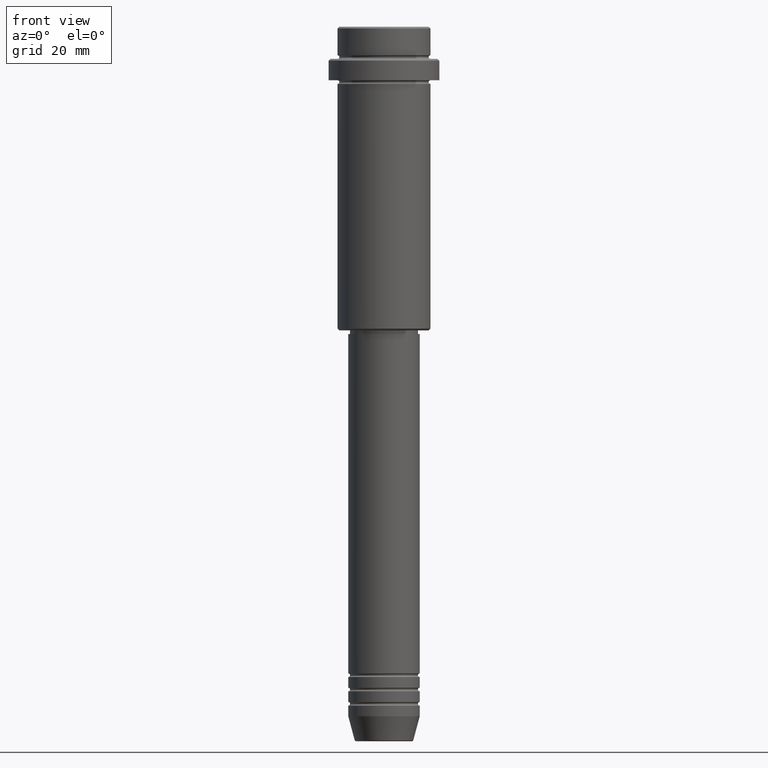
[diagram: clean part render]
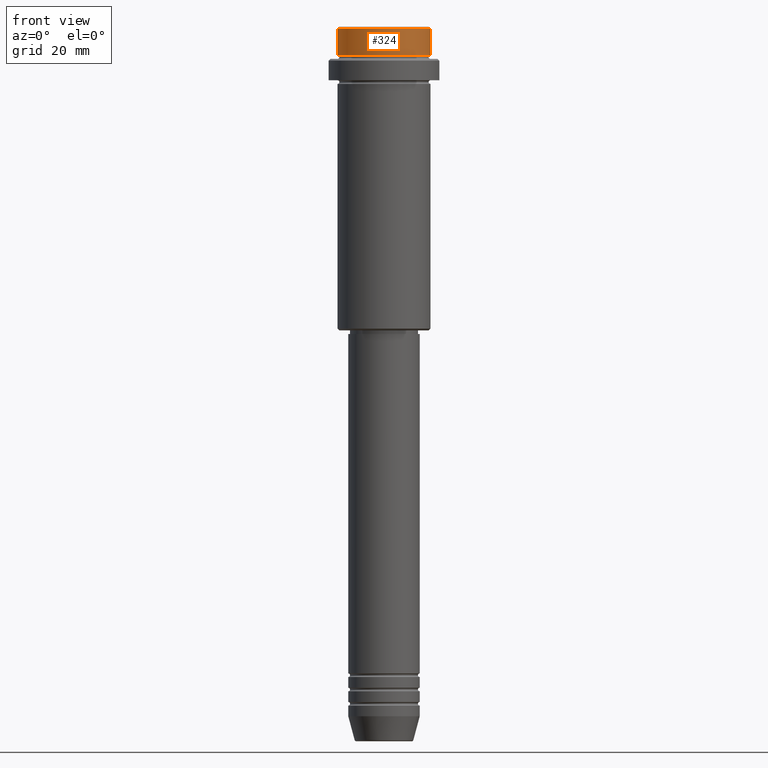
[diagram: same view with one face highlighted and labeled with its STEP entity id]
A machine part, front view. The second image highlights one B-rep face of the part: STEP entity #324.
In plain terms, the highlighted cylindrical surface (partial cylindrical patch) has radius 13 mm, axis along (-0, -0, 1).
Its self-contained STEP definition (entity closure, byte-faithful):
#11 = DIRECTION ( 'NONE',  ( -0.000000000000000000, -0.000000000000000000, 1.000000000000000000 ) ) ;
#87 = VERTEX_POINT ( 'NONE', #328 ) ;
#106 = DIRECTION ( 'NONE',  ( 1.000000000000000000, 0.000000000000000000, 0.000000000000000000 ) ) ;
#133 = DIRECTION ( 'NONE',  ( -0.000000000000000000, -0.000000000000000000, 1.000000000000000000 ) ) ;
#151 = DIRECTION ( 'NONE',  ( -0.000000000000000000, -0.000000000000000000, 1.000000000000000000 ) ) ;
#161 = ORIENTED_EDGE ( 'NONE', *, *, #1176, .T. ) ;
#223 = EDGE_CURVE ( 'NONE', #1054, #87, #1063, .T. ) ;
#251 = EDGE_CURVE ( 'NONE', #1111, #87, #1127, .T. ) ;
#255 = DIRECTION ( 'NONE',  ( 1.000000000000000000, 0.000000000000000000, 0.000000000000000000 ) ) ;
#292 = AXIS2_PLACEMENT_3D ( 'NONE', #901, #672, #255 ) ;
#303 = DIRECTION ( 'NONE',  ( 1.000000000000000000, 0.000000000000000000, 0.000000000000000000 ) ) ;
#324 = ADVANCED_FACE ( 'NONE', ( #384 ), #635, .T. ) ;
#328 = CARTESIAN_POINT ( 'NONE',  ( -12.99999999999999822, 1.592040838891558898E-15, -0.5000000000000037748 ) ) ;
#340 = CIRCLE ( 'NONE', #1180, 12.99999999999999822 ) ;
#384 = FACE_OUTER_BOUND ( 'NONE', #878, .T. ) ;
#410 = CARTESIAN_POINT ( 'NONE',  ( 12.99999999999999822, 0.000000000000000000, -0.5000000000000037748 ) ) ;
#423 = ORIENTED_EDGE ( 'NONE', *, *, #680, .T. ) ;
#472 = VECTOR ( 'NONE', #151, 1000.000000000000000 ) ;
#606 = AXIS2_PLACEMENT_3D ( 'NONE', #971, #1406, #303 ) ;
#635 = CYLINDRICAL_SURFACE ( 'NONE', #606, 12.99999999999999822 ) ;
#672 = DIRECTION ( 'NONE',  ( 0.000000000000000000, 0.000000000000000000, -1.000000000000000000 ) ) ;
#680 = EDGE_CURVE ( 'NONE', #1111, #1045, #340, .T. ) ;
#878 = EDGE_LOOP ( 'NONE', ( #1234, #423, #161, #949 ) ) ;
#888 = VECTOR ( 'NONE', #11, 1000.000000000000000 ) ;
#901 = CARTESIAN_POINT ( 'NONE',  ( 0.000000000000000000, 0.000000000000000000, -0.5000000000000037748 ) ) ;
#949 = ORIENTED_EDGE ( 'NONE', *, *, #223, .T. ) ;
#971 = CARTESIAN_POINT ( 'NONE',  ( 0.000000000000000000, 0.000000000000000000, 0.000000000000000000 ) ) ;
#980 = CARTESIAN_POINT ( 'NONE',  ( 12.99999999999999822, 0.000000000000000000, 0.000000000000000000 ) ) ;
#1030 = CARTESIAN_POINT ( 'NONE',  ( -12.99999999999999822, 1.592040838891558898E-15, 0.000000000000000000 ) ) ;
#1045 = VERTEX_POINT ( 'NONE', #1186 ) ;
#1054 = VERTEX_POINT ( 'NONE', #410 ) ;
#1063 = CIRCLE ( 'NONE', #292, 12.99999999999999822 ) ;
#1109 = LINE ( 'NONE', #980, #888 ) ;
#1111 = VERTEX_POINT ( 'NONE', #1257 ) ;
#1127 = LINE ( 'NONE', #1030, #472 ) ;
#1176 = EDGE_CURVE ( 'NONE', #1045, #1054, #1109, .T. ) ;
#1180 = AXIS2_PLACEMENT_3D ( 'NONE', #1218, #133, #106 ) ;
#1186 = CARTESIAN_POINT ( 'NONE',  ( 12.99999999999999822, 0.000000000000000000, -7.999999999999998224 ) ) ;
#1218 = CARTESIAN_POINT ( 'NONE',  ( 0.000000000000000000, 0.000000000000000000, -7.999999999999998224 ) ) ;
#1234 = ORIENTED_EDGE ( 'NONE', *, *, #251, .F. ) ;
#1257 = CARTESIAN_POINT ( 'NONE',  ( -12.99999999999999822, 1.592040838891558898E-15, -7.999999999999998224 ) ) ;
#1406 = DIRECTION ( 'NONE',  ( -0.000000000000000000, -0.000000000000000000, 1.000000000000000000 ) ) ;